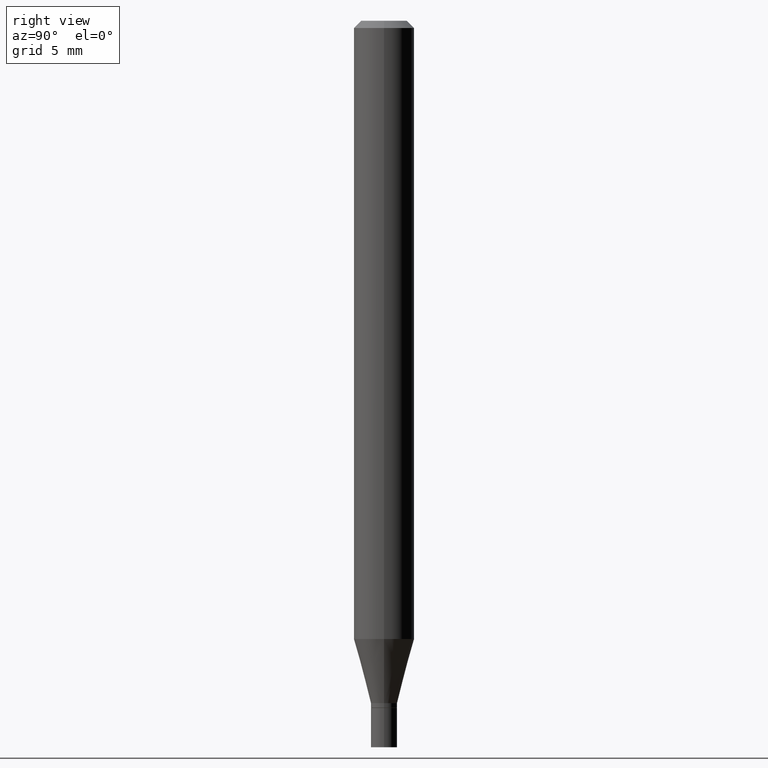
[diagram: clean part render]
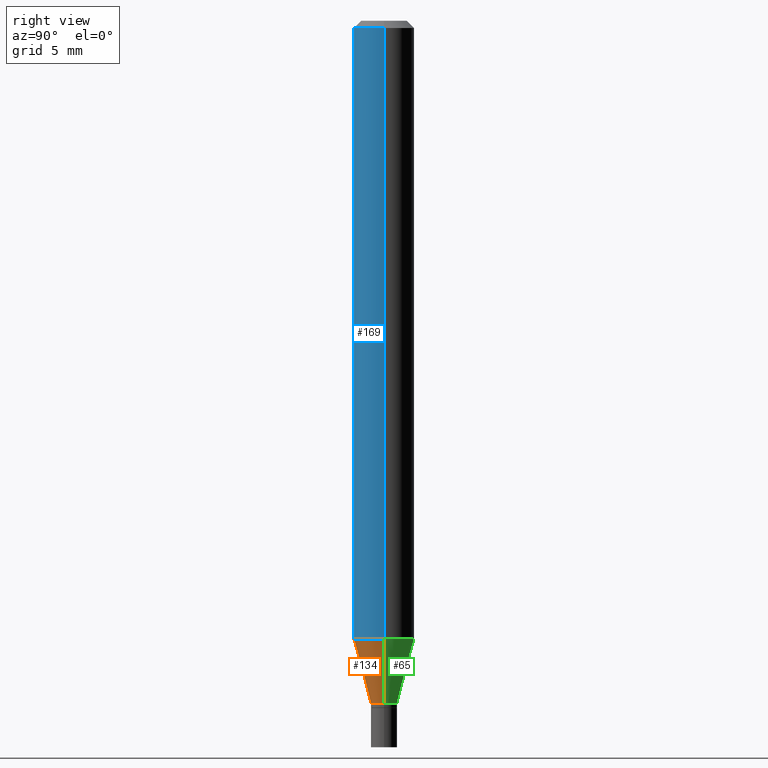
[diagram: same view with three faces highlighted in distinct colors, each labeled with its STEP entity id]
A machine part, right view with three faces highlighted in distinct colors.
Their STEP definitions:

[orange] entity #134 — the highlighted conical surface has half-angle 15 deg.
#26 = EDGE_CURVE ( 'NONE', #206, #260, #367, .T. ) ;
#27 = CONICAL_SURFACE ( 'NONE', #279, 0.02699999999999991296, 0.2617993877991495744 ) ;
#35 = VERTEX_POINT ( 'NONE', #117 ) ;
#51 = VECTOR ( 'NONE', #441, 39.37007874015748143 ) ;
#76 = EDGE_CURVE ( 'NONE', #260, #272, #161, .T. ) ;
#82 = DIRECTION ( 'NONE',  ( -2.445468806185136597E-29, 3.491481338843145583E-15, 1.000000000000000000 ) ) ;
#95 = ORIENTED_EDGE ( 'NONE', *, *, #425, .T. ) ;
#117 = CARTESIAN_POINT ( 'NONE',  ( 0.02699999999999991296, -5.108037198727522179E-15, -1.409000000000000252 ) ) ;
#134 = ADVANCED_FACE ( 'NONE', ( #149 ), #27, .T. ) ;
#138 = CARTESIAN_POINT ( 'NONE',  ( -0.02699999999999991296, -4.370239985110565754E-15, -1.409000000000000252 ) ) ;
#149 = FACE_OUTER_BOUND ( 'NONE', #301, .T. ) ;
#161 = CIRCLE ( 'NONE', #326, 0.06250000000000000000 ) ;
#179 = CARTESIAN_POINT ( 'NONE',  ( 3.445665547914857626E-29, -4.919497206429992694E-15, -1.409000000000000252 ) ) ;
#190 = DIRECTION ( 'NONE',  ( 1.000000000000000000, -6.982962677686283277E-15, 0.000000000000000000 ) ) ;
#198 = CARTESIAN_POINT ( 'NONE',  ( 0.02699999999999991296, -5.108037198727522179E-15, -1.409000000000000252 ) ) ;
#206 = VERTEX_POINT ( 'NONE', #138 ) ;
#215 = CARTESIAN_POINT ( 'NONE',  ( -0.06250000000000000000, -4.012829302446366033E-15, -1.276512196331304860 ) ) ;
#218 = AXIS2_PLACEMENT_3D ( 'NONE', #230, #379, #190 ) ;
#225 = LINE ( 'NONE', #198, #447 ) ;
#230 = CARTESIAN_POINT ( 'NONE',  ( 3.445665547914857626E-29, -4.919497206429992694E-15, -1.409000000000000252 ) ) ;
#257 = DIRECTION ( 'NONE',  ( 1.000000000000000000, -6.982962677686262766E-15, 0.000000000000000000 ) ) ;
#260 = VERTEX_POINT ( 'NONE', #215 ) ;
#272 = VERTEX_POINT ( 'NONE', #363 ) ;
#279 = AXIS2_PLACEMENT_3D ( 'NONE', #179, #396, #319 ) ;
#293 = ORIENTED_EDGE ( 'NONE', *, *, #76, .F. ) ;
#301 = EDGE_LOOP ( 'NONE', ( #381, #95, #418, #293 ) ) ;
#319 = DIRECTION ( 'NONE',  ( 1.000000000000000000, -6.982962677686283277E-15, 0.000000000000000000 ) ) ;
#326 = AXIS2_PLACEMENT_3D ( 'NONE', #375, #82, #257 ) ;
#352 = CIRCLE ( 'NONE', #218, 0.02699999999999991296 ) ;
#363 = CARTESIAN_POINT ( 'NONE',  ( 0.06250000000000000000, -4.893353679651821108E-15, -1.276512196331304860 ) ) ;
#367 = LINE ( 'NONE', #435, #51 ) ;
#372 = DIRECTION ( 'NONE',  ( 0.2588190451025209060, 1.565188264969625123E-15, 0.9659258262890682012 ) ) ;
#375 = CARTESIAN_POINT ( 'NONE',  ( 3.121670756843082346E-29, -4.456918512296428650E-15, -1.276512196331304860 ) ) ;
#379 = DIRECTION ( 'NONE',  ( -2.445468806185136597E-29, 3.491481338843145583E-15, 1.000000000000000000 ) ) ;
#380 = EDGE_CURVE ( 'NONE', #35, #272, #225, .T. ) ;
#381 = ORIENTED_EDGE ( 'NONE', *, *, #26, .F. ) ;
#396 = DIRECTION ( 'NONE',  ( -2.445468806185136597E-29, 3.491481338843145583E-15, 1.000000000000000000 ) ) ;
#418 = ORIENTED_EDGE ( 'NONE', *, *, #380, .T. ) ;
#425 = EDGE_CURVE ( 'NONE', #206, #35, #352, .T. ) ;
#435 = CARTESIAN_POINT ( 'NONE',  ( -0.02699999999999991296, -4.727650667774767051E-15, -1.409000000000000252 ) ) ;
#441 = DIRECTION ( 'NONE',  ( -0.2588190451025209060, 5.211531920934547097E-15, 0.9659258262890682012 ) ) ;
#447 = VECTOR ( 'NONE', #372, 39.37007874015748143 ) ;

[blue] entity #169 — the highlighted cylindrical surface (edge-blend (fillet) strip) has radius 1.5875 mm, axis along (-0, 0, 1).
#4 = ORIENTED_EDGE ( 'NONE', *, *, #56, .F. ) ;
#18 = CARTESIAN_POINT ( 'NONE',  ( 0.06250000000000000000, -4.364351673553916694E-16, 3.047610484872459871E-30 ) ) ;
#21 = VECTOR ( 'NONE', #410, 39.37007874015748143 ) ;
#48 = DIRECTION ( 'NONE',  ( 1.000000000000000000, -6.982962677686266711E-15, 0.000000000000000000 ) ) ;
#53 = CARTESIAN_POINT ( 'NONE',  ( -0.06250000000000000000, 4.440892098500626162E-16, -3.074334431409316114E-30 ) ) ;
#55 = DIRECTION ( 'NONE',  ( -2.445468806185136877E-29, 3.491481338843145188E-15, 1.000000000000000000 ) ) ;
#56 = EDGE_CURVE ( 'NONE', #62, #100, #246, .T. ) ;
#62 = VERTEX_POINT ( 'NONE', #443 ) ;
#76 = EDGE_CURVE ( 'NONE', #260, #272, #161, .T. ) ;
#82 = DIRECTION ( 'NONE',  ( -2.445468806185136597E-29, 3.491481338843145583E-15, 1.000000000000000000 ) ) ;
#100 = VERTEX_POINT ( 'NONE', #221 ) ;
#109 = CARTESIAN_POINT ( 'NONE',  ( 0.000000000000000000, 0.000000000000000000, 0.000000000000000000 ) ) ;
#112 = FACE_OUTER_BOUND ( 'NONE', #238, .T. ) ;
#123 = LINE ( 'NONE', #18, #21 ) ;
#159 = ORIENTED_EDGE ( 'NONE', *, *, #393, .T. ) ;
#161 = CIRCLE ( 'NONE', #326, 0.06250000000000000000 ) ;
#169 = ADVANCED_FACE ( 'NONE', ( #112 ), #427, .T. ) ;
#173 = VECTOR ( 'NONE', #55, 39.37007874015748143 ) ;
#184 = DIRECTION ( 'NONE',  ( 1.000000000000000000, -6.982962677686266711E-15, 4.876176775795935793E-29 ) ) ;
#215 = CARTESIAN_POINT ( 'NONE',  ( -0.06250000000000000000, -4.012829302446366033E-15, -1.276512196331304860 ) ) ;
#217 = AXIS2_PLACEMENT_3D ( 'NONE', #109, #395, #184 ) ;
#221 = CARTESIAN_POINT ( 'NONE',  ( 0.06250000000000000000, -4.888073874380388472E-16, -0.01499999999999999944 ) ) ;
#228 = DIRECTION ( 'NONE',  ( -2.445468806185136597E-29, 3.491481338843145583E-15, 1.000000000000000000 ) ) ;
#229 = LINE ( 'NONE', #53, #173 ) ;
#238 = EDGE_LOOP ( 'NONE', ( #329, #388, #159, #4 ) ) ;
#246 = CIRCLE ( 'NONE', #446, 0.06250000000000000000 ) ;
#257 = DIRECTION ( 'NONE',  ( 1.000000000000000000, -6.982962677686262766E-15, 0.000000000000000000 ) ) ;
#260 = VERTEX_POINT ( 'NONE', #215 ) ;
#272 = VERTEX_POINT ( 'NONE', #363 ) ;
#326 = AXIS2_PLACEMENT_3D ( 'NONE', #375, #82, #257 ) ;
#329 = ORIENTED_EDGE ( 'NONE', *, *, #354, .F. ) ;
#354 = EDGE_CURVE ( 'NONE', #260, #62, #229, .T. ) ;
#363 = CARTESIAN_POINT ( 'NONE',  ( 0.06250000000000000000, -4.893353679651821108E-15, -1.276512196331304860 ) ) ;
#375 = CARTESIAN_POINT ( 'NONE',  ( 3.121670756843082346E-29, -4.456918512296428650E-15, -1.276512196331304860 ) ) ;
#388 = ORIENTED_EDGE ( 'NONE', *, *, #76, .T. ) ;
#393 = EDGE_CURVE ( 'NONE', #272, #100, #123, .T. ) ;
#395 = DIRECTION ( 'NONE',  ( -2.445468806185136597E-29, 3.491481338843145583E-15, 1.000000000000000000 ) ) ;
#408 = CARTESIAN_POINT ( 'NONE',  ( 3.668203209277705088E-31, -5.237222008264718399E-17, -0.01499999999999999944 ) ) ;
#410 = DIRECTION ( 'NONE',  ( -2.445468806185136877E-29, 3.491481338843145188E-15, 1.000000000000000000 ) ) ;
#427 = CYLINDRICAL_SURFACE ( 'NONE', #217, 0.06250000000000000000 ) ;
#443 = CARTESIAN_POINT ( 'NONE',  ( -0.06250000000000000000, -1.810556156339475445E-15, -0.01499999999999999944 ) ) ;
#446 = AXIS2_PLACEMENT_3D ( 'NONE', #408, #228, #48 ) ;

[green] entity #65 — the highlighted conical surface has half-angle 15 deg.
#17 = ORIENTED_EDGE ( 'NONE', *, *, #380, .F. ) ;
#23 = DIRECTION ( 'NONE',  ( -2.445468806185136597E-29, 3.491481338843145583E-15, 1.000000000000000000 ) ) ;
#26 = EDGE_CURVE ( 'NONE', #206, #260, #367, .T. ) ;
#33 = CIRCLE ( 'NONE', #358, 0.06250000000000000000 ) ;
#35 = VERTEX_POINT ( 'NONE', #117 ) ;
#51 = VECTOR ( 'NONE', #441, 39.37007874015748143 ) ;
#65 = ADVANCED_FACE ( 'NONE', ( #181 ), #387, .T. ) ;
#98 = ORIENTED_EDGE ( 'NONE', *, *, #147, .F. ) ;
#103 = DIRECTION ( 'NONE',  ( 1.000000000000000000, -6.982962677686283277E-15, 0.000000000000000000 ) ) ;
#117 = CARTESIAN_POINT ( 'NONE',  ( 0.02699999999999991296, -5.108037198727522179E-15, -1.409000000000000252 ) ) ;
#137 = AXIS2_PLACEMENT_3D ( 'NONE', #452, #23, #103 ) ;
#138 = CARTESIAN_POINT ( 'NONE',  ( -0.02699999999999991296, -4.370239985110565754E-15, -1.409000000000000252 ) ) ;
#147 = EDGE_CURVE ( 'NONE', #272, #260, #33, .T. ) ;
#181 = FACE_OUTER_BOUND ( 'NONE', #390, .T. ) ;
#191 = CARTESIAN_POINT ( 'NONE',  ( 3.445665547914857626E-29, -4.919497206429992694E-15, -1.409000000000000252 ) ) ;
#198 = CARTESIAN_POINT ( 'NONE',  ( 0.02699999999999991296, -5.108037198727522179E-15, -1.409000000000000252 ) ) ;
#206 = VERTEX_POINT ( 'NONE', #138 ) ;
#215 = CARTESIAN_POINT ( 'NONE',  ( -0.06250000000000000000, -4.012829302446366033E-15, -1.276512196331304860 ) ) ;
#216 = EDGE_CURVE ( 'NONE', #35, #206, #309, .T. ) ;
#219 = DIRECTION ( 'NONE',  ( 1.000000000000000000, -6.982962677686262766E-15, 0.000000000000000000 ) ) ;
#225 = LINE ( 'NONE', #198, #447 ) ;
#242 = ORIENTED_EDGE ( 'NONE', *, *, #216, .T. ) ;
#260 = VERTEX_POINT ( 'NONE', #215 ) ;
#272 = VERTEX_POINT ( 'NONE', #363 ) ;
#288 = DIRECTION ( 'NONE',  ( -2.445468806185136597E-29, 3.491481338843145583E-15, 1.000000000000000000 ) ) ;
#309 = CIRCLE ( 'NONE', #137, 0.02699999999999991296 ) ;
#318 = CARTESIAN_POINT ( 'NONE',  ( 3.121670756843082346E-29, -4.456918512296428650E-15, -1.276512196331304860 ) ) ;
#358 = AXIS2_PLACEMENT_3D ( 'NONE', #318, #288, #219 ) ;
#363 = CARTESIAN_POINT ( 'NONE',  ( 0.06250000000000000000, -4.893353679651821108E-15, -1.276512196331304860 ) ) ;
#367 = LINE ( 'NONE', #435, #51 ) ;
#372 = DIRECTION ( 'NONE',  ( 0.2588190451025209060, 1.565188264969625123E-15, 0.9659258262890682012 ) ) ;
#380 = EDGE_CURVE ( 'NONE', #35, #272, #225, .T. ) ;
#383 = ORIENTED_EDGE ( 'NONE', *, *, #26, .T. ) ;
#387 = CONICAL_SURFACE ( 'NONE', #459, 0.02699999999999991296, 0.2617993877991495744 ) ;
#390 = EDGE_LOOP ( 'NONE', ( #242, #383, #98, #17 ) ) ;
#400 = DIRECTION ( 'NONE',  ( -2.445468806185136597E-29, 3.491481338843145583E-15, 1.000000000000000000 ) ) ;
#430 = DIRECTION ( 'NONE',  ( 1.000000000000000000, -6.982962677686283277E-15, 0.000000000000000000 ) ) ;
#435 = CARTESIAN_POINT ( 'NONE',  ( -0.02699999999999991296, -4.727650667774767051E-15, -1.409000000000000252 ) ) ;
#441 = DIRECTION ( 'NONE',  ( -0.2588190451025209060, 5.211531920934547097E-15, 0.9659258262890682012 ) ) ;
#447 = VECTOR ( 'NONE', #372, 39.37007874015748143 ) ;
#452 = CARTESIAN_POINT ( 'NONE',  ( 3.445665547914857626E-29, -4.919497206429992694E-15, -1.409000000000000252 ) ) ;
#459 = AXIS2_PLACEMENT_3D ( 'NONE', #191, #400, #430 ) ;